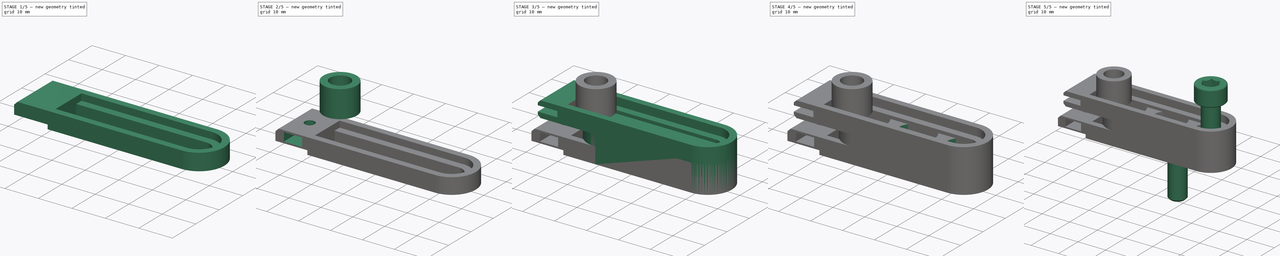
[diagram: build sequence overview — one tinted view per stage of 5, left to right]
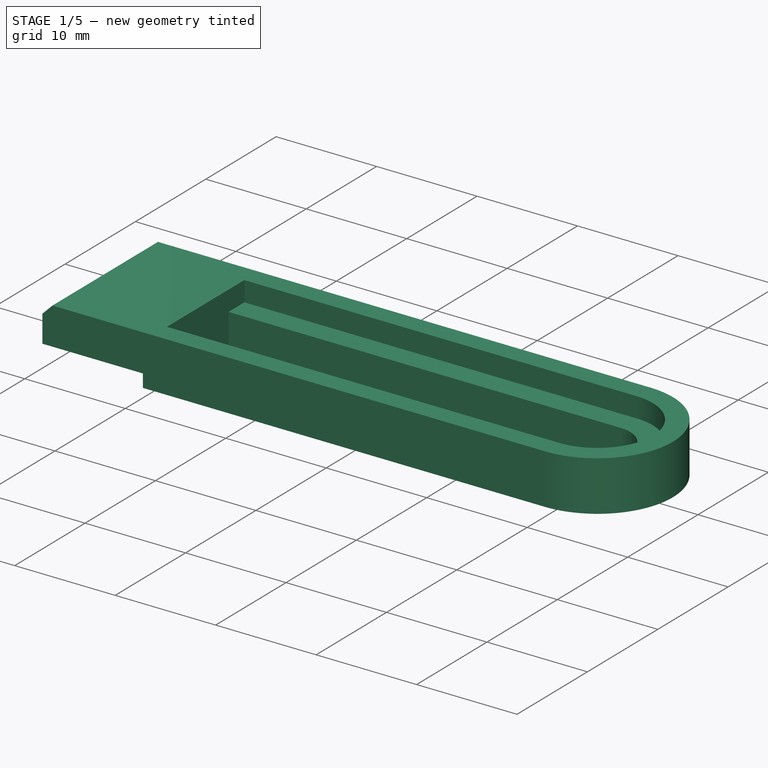
[diagram: stage 1 of 5 — iso view after this stage's code; geometry added in this stage tinted green]
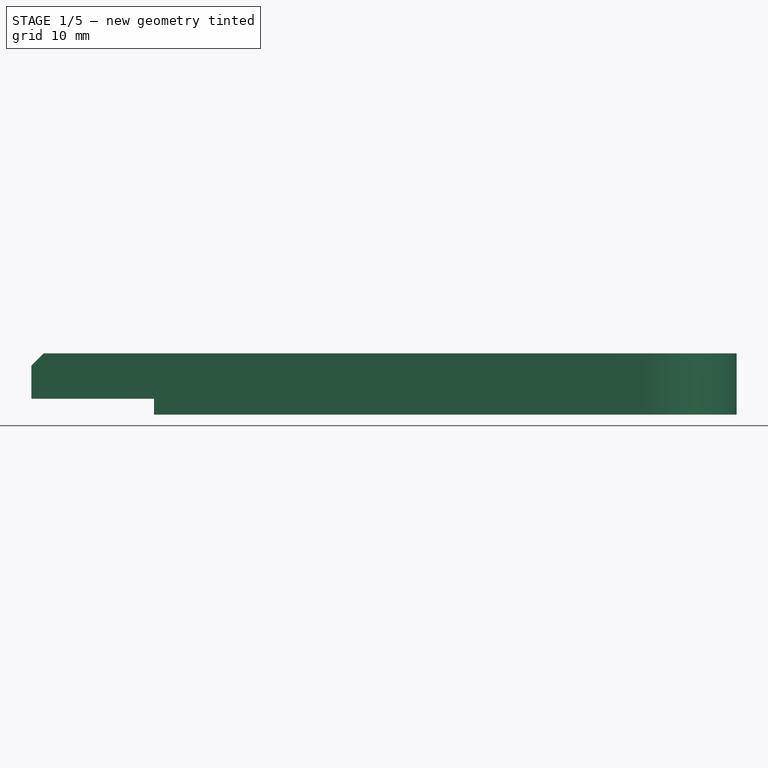
[diagram: stage 1 of 5 — front view after this stage's code; geometry added in this stage tinted green]
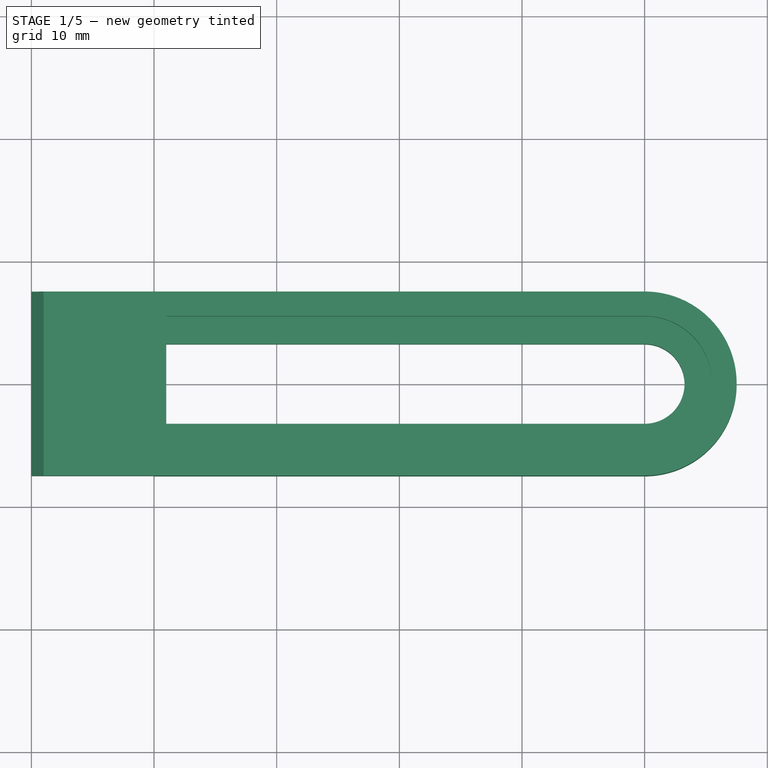
[diagram: stage 1 of 5 — top view after this stage's code; geometry added in this stage tinted green]
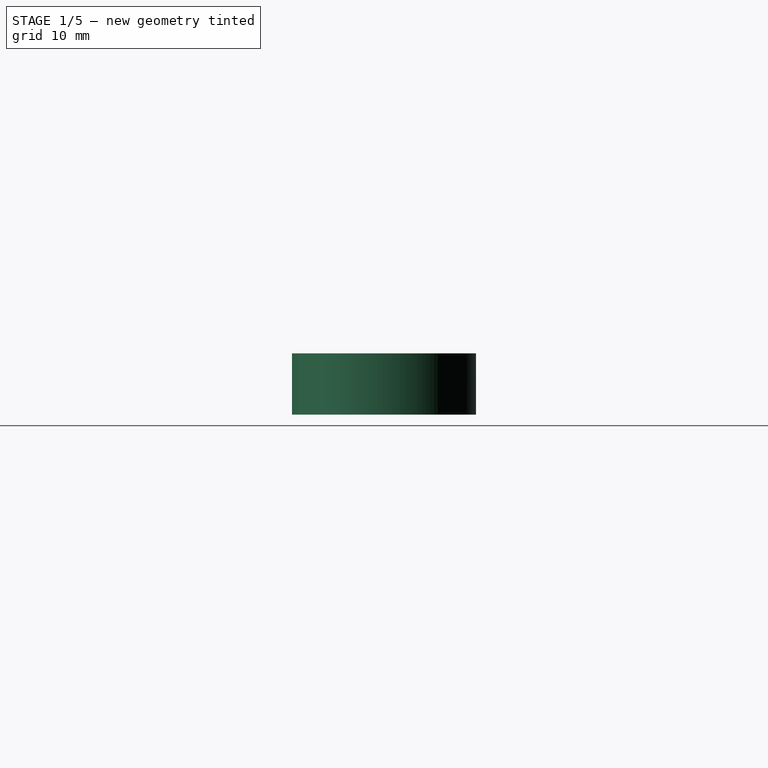
[diagram: stage 1 of 5 — right view after this stage's code; geometry added in this stage tinted green]
FCSTD DOCUMENT  (FreeCAD 0.18R16146 (Git))
Label: holddown-pcb
License: All rights reserved
LicenseURL: http://en.wikipedia.org/wiki/All_rights_reserved
objects: Sketcher::SketchObject×14, PartDesign::Pocket×7, PartDesign::Pad×6, PartDesign::Body×4, Part::FeaturePython×3
note: 47 computed .brp shape members not serialized (recipe doc carries the construction recipe); baked Part::Feature solids carry a one-line shape summary decoded from their .brp

FEATURE [PartDesign::Body] Body002  label="holddown-pcb-spacer"
  Group = -> [Sketch011,Pad003]
  Origin = -> Origin002
  Tip = -> Pad003
FEATURE [Sketcher::SketchObject] Sketch012
  AttachmentOffset = pos=(0,0,3) rot=(0,0,1;0rad)
  MapMode = 5
  Placement = pos=(0,0,3) rot=(0,0,1;0rad)
  Support = -> [XY_Plane003]
  sketch-geometry (4):
    g0: ArcOfCircle CenterX=0 CenterY=0 CenterZ=0 NormalX=0 NormalY=0 NormalZ=1 AngleXU=0 Radius=5.5 StartAngle=4.71239 EndAngle=7.85398
    g1: ArcOfCircle CenterX=-40 CenterY=-4.98e-14 CenterZ=0 NormalX=0 NormalY=0 NormalZ=1 AngleXU=0 Radius=5.5 StartAngle=1.5708 EndAngle=4.71239
    g2: LineSegment StartX=1.727e-13 StartY=5.5 StartZ=0 EndX=-40 EndY=5.5 EndZ=0
    g3: LineSegment StartX=1.846e-13 StartY=-5.5 StartZ=0 EndX=-40 EndY=-5.5 EndZ=0
  constraints (9):
    c: Tangent(g0,g3) = 1.5708
    c: Tangent(g0,g2) = -1.5708
    c: Tangent(g2,g1) = -1.5708
    c: Tangent(g3,g1) = 1.5708
    c: Horizontal(g2)
    c: Equal(g0,g1)
    c: DistanceX(g1,g0) = 40
    c: DistanceY(g1,g1) = 5.5
    c: Coincident(g0,g-1)
FEATURE [Sketcher::SketchObject] Sketch013
  MapMode = 5
  Support = -> [XY_Plane003]
  sketch-geometry (8):
    g0: ArcOfCircle CenterX=0 CenterY=0 CenterZ=0 NormalX=0 NormalY=0 NormalZ=1 AngleXU=0 Radius=7.5 StartAngle=4.71239 EndAngle=7.85398
    g1: LineSegment StartX=2.3e-15 StartY=7.5 StartZ=0 EndX=-40 EndY=7.5 EndZ=0
    g2: LineSegment StartX=-1.4e-15 StartY=-7.5 StartZ=0 EndX=-40 EndY=-7.5 EndZ=0
    g3: ArcOfCircle CenterX=0 CenterY=0 CenterZ=0 NormalX=0 NormalY=0 NormalZ=1 AngleXU=0 Radius=3.25 StartAngle=4.71239 EndAngle=7.85398
    g4: LineSegment StartX=0 StartY=3.25 StartZ=0 EndX=-40 EndY=3.25 EndZ=0
    g5: LineSegment StartX=-6e-16 StartY=-3.25 StartZ=0 EndX=-40 EndY=-3.25 EndZ=0
    g6: LineSegment StartX=-40 StartY=7.5 StartZ=0 EndX=-40 EndY=3.25 EndZ=0
    g7: LineSegment StartX=-40 StartY=-3.25 StartZ=0 EndX=-40 EndY=-7.5 EndZ=0
  constraints (20):
    c: Tangent(g0,g2) = 1.5708
    c: Tangent(g0,g1) = -1.5708
    c: Horizontal(g1)
    c: Coincident(g0,g-1)
    c: DistanceY(g0,g0) = 7.5
    c: Tangent(g3,g5) = 1.5708
    c: Tangent(g3,g4) = -1.5708
    c: Horizontal(g4)
    c: Coincident(g3,g0)
    c: DistanceY(g0,g3) = 3.25
    c: Vertical(g6)
    c: Coincident(g4,g6)
    c: Horizontal(g2)
    c: Coincident(g5,g7)
    c: Coincident(g2,g7)
    c: Vertical(g7)
    c: Coincident(g1,g6)
    c: DistanceX(g5,g4) = 0
    c: DistanceX(g1,g0) = 40
    c: Horizontal(g5)
FEATURE [PartDesign::Pad] Pad004
  Length = 5
  Length2 = 100
  Profile = -> Sketch013
  Type = 0
FEATURE [PartDesign::Pocket] Pocket004
  BaseFeature = -> Pad004
  Length = 5
  Length2 = 100
  Profile = -> Sketch012
  Reversed = true
  Type = 1
FEATURE [Sketcher::SketchObject] Sketch014
  AttachmentOffset = pos=(0,0,7.5) rot=(0,0,1;0rad)
  MapMode = 5
  Placement = pos=(0,-7.5,-1.7e-15) rot=(1,0,0;1.5708rad)
  Support = -> [XZ_Plane003]
  sketch-geometry (8):
    g0: LineSegment StartX=-49 StartY=5 StartZ=0 EndX=-50 EndY=4 EndZ=0
    g1: LineSegment StartX=-50 StartY=4 StartZ=0 EndX=-50 EndY=1.3 EndZ=0
    g2: LineSegment StartX=-50 StartY=1.3 StartZ=0 EndX=-40 EndY=1.3 EndZ=0
    g3: LineSegment StartX=-40 StartY=5 StartZ=0 EndX=-39 EndY=5 EndZ=0
    g4: LineSegment StartX=-39 StartY=5 StartZ=0 EndX=-39 EndY=0 EndZ=0
    g5: LineSegment StartX=-40 StartY=1.3 StartZ=0 EndX=-40 EndY=0 EndZ=0
    g6: LineSegment StartX=-40 StartY=0 StartZ=0 EndX=-39 EndY=0 EndZ=0
    g7: LineSegment StartX=-40 StartY=5 StartZ=0 EndX=-49 EndY=5 EndZ=0
  constraints (24):
    c: Vertical(g1)
    c: Coincident(g2,g1)
    c: Horizontal(g2)
    c: DistanceY(g-1,g2) = 1.3
    c: Coincident(g0,g1)
    c: DistanceX(g0,g0) = 1
    c: DistanceY(g0,g0) = 1
    c: DistanceX(g2,g2) = 10
    c: DistanceX(g2,g-1) = 40
    c: Horizontal(g3)
    c: Coincident(g4,g3)
    c: Vertical(g4)
    c: Coincident(g5,g2)
    c: Vertical(g5)
    c: Coincident(g6,g5)
    c: Coincident(g6,g4)
    c: Horizontal(g6)
    c: PointOnObject(g5,g-1)
    c: DistanceX(g3,g3) = 1
    c: Coincident(g7,g0)
    c: Horizontal(g7)
    c: Coincident(g3,g7)
    c: DistanceY(g4,g4) = 5
    c: DistanceX(g2,g3) = 0
FEATURE [PartDesign::Pad] Pad005
  BaseFeature = -> Pocket004
  Length = 15
  Length2 = 100
  Profile = -> Sketch014
  Reversed = true
  Type = 0
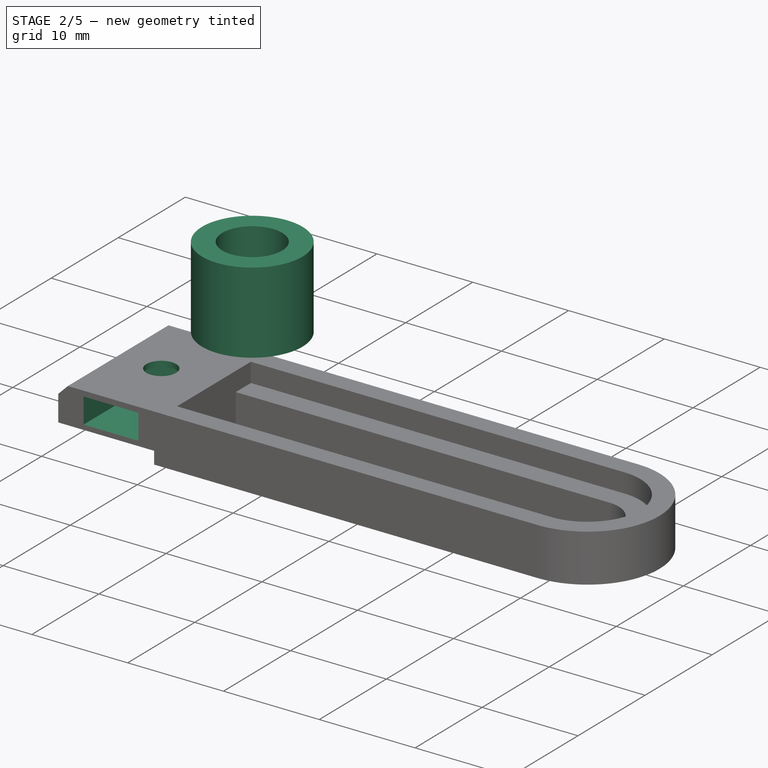
[diagram: stage 2 of 5 — iso view after this stage's code; geometry added in this stage tinted green]
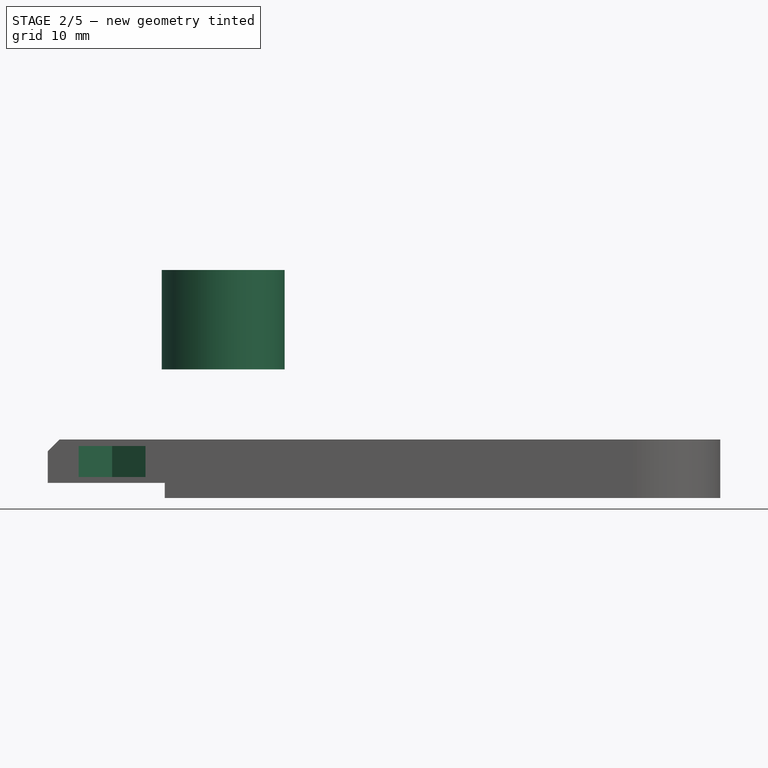
[diagram: stage 2 of 5 — front view after this stage's code; geometry added in this stage tinted green]
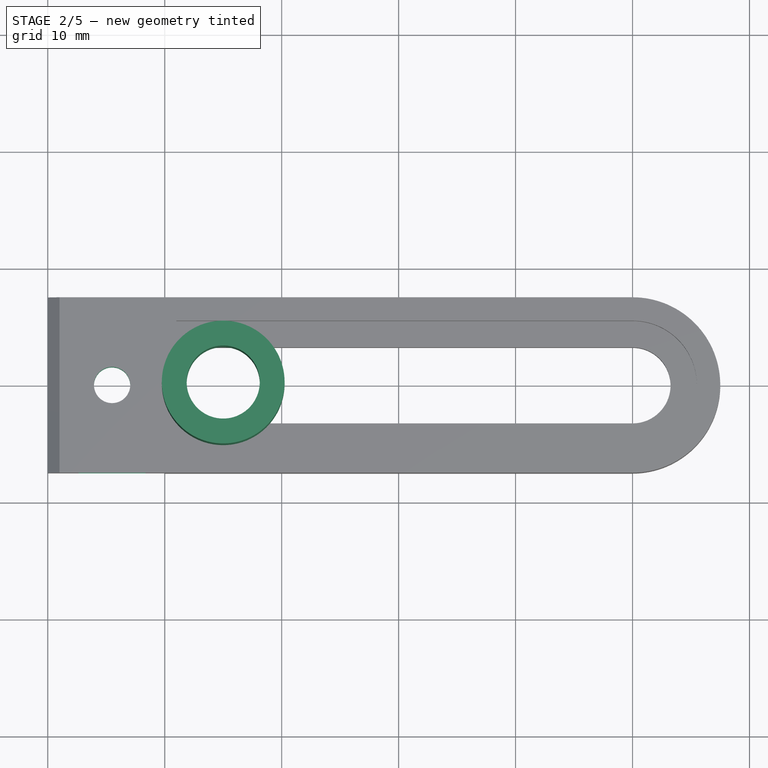
[diagram: stage 2 of 5 — top view after this stage's code; geometry added in this stage tinted green]
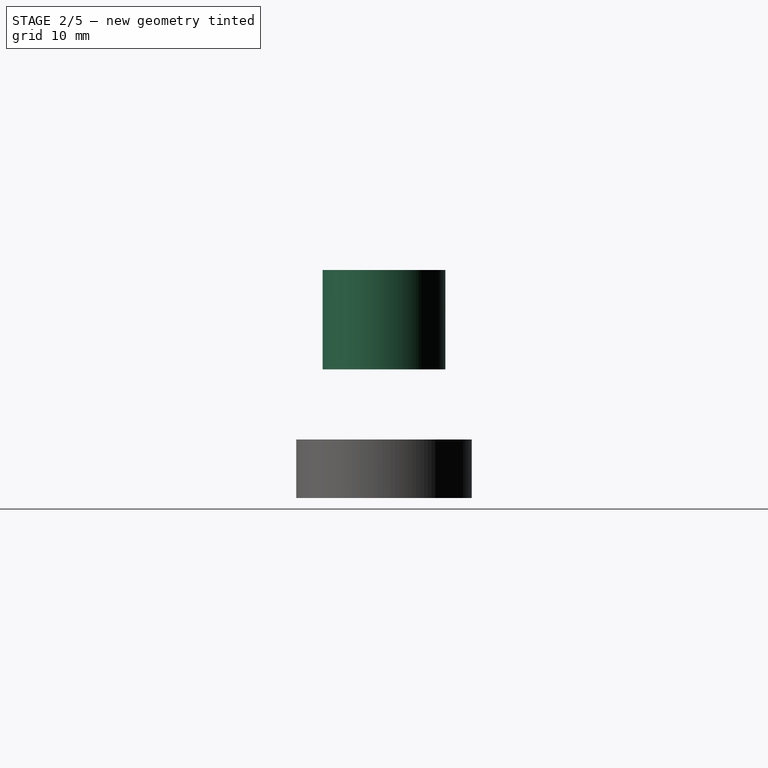
[diagram: stage 2 of 5 — right view after this stage's code; geometry added in this stage tinted green]
FEATURE [PartDesign::Body] Body001  label="holddown-pcb-clip"
  Group = -> [Sketch005,Pad001,Sketch006,Pocket003,Sketch007,Pad002]
  Origin = -> Origin001
  Tip = -> Pad002
FEATURE [Sketcher::SketchObject] Sketch011
  AttachmentOffset = pos=(0,0,11) rot=(0,0,1;0rad)
  MapMode = 5
  Placement = pos=(0,0,11) rot=(0,0,1;0rad)
  Support = -> [XY_Plane002]
  sketch-geometry (2):
    g0: Circle CenterX=-35 CenterY=0 CenterZ=0 NormalX=0 NormalY=0 NormalZ=1 AngleXU=0 Radius=3.125
    g1: Circle CenterX=-35 CenterY=0 CenterZ=0 NormalX=0 NormalY=0 NormalZ=1 AngleXU=0 Radius=5.25
  constraints (5):
    c: PointOnObject(g0,g-1)
    c: Coincident(g1,g0)
    c: Diameter(g0) = 6.25
    c: Diameter(g1) = 10.5
    c: DistanceX(g0,g-1) = 35
FEATURE [PartDesign::Pad] Pad003
  Length = 8.5
  Length2 = 100
  Profile = -> Sketch011
  Type = 0
FEATURE [Sketcher::SketchObject] Sketch015
  MapMode = 5
  Support = -> [XY_Plane003]
  sketch-geometry (1):
    g0: Circle CenterX=-44.5 CenterY=0 CenterZ=0 NormalX=0 NormalY=0 NormalZ=1 AngleXU=0 Radius=1.55
  constraints (3):
    c: Diameter(g0) = 3.1
    c: DistanceX(g0,g-1) = 44.5
    c: PointOnObject(g0,g-1)
FEATURE [PartDesign::Pocket] Pocket005
  BaseFeature = -> Pad005
  Length = 5
  Length2 = 100
  Profile = -> Sketch015
  Reversed = true
  Type = 1
FEATURE [Sketcher::SketchObject] Sketch016
  AttachmentOffset = pos=(0,0,1.8) rot=(0,0,1;0rad)
  MapMode = 5
  Placement = pos=(0,0,1.8) rot=(0,0,1;0rad)
  Support = -> [XY_Plane003]
  sketch-geometry (8):
    g0: LineSegment StartX=-44.5 StartY=3.3 StartZ=0 EndX=-47.3579 EndY=1.65 EndZ=0
    g1: LineSegment StartX=-47.3579 StartY=1.65 StartZ=0 EndX=-47.3579 EndY=-1.65 EndZ=0
    g2: LineSegment StartX=-41.6421 StartY=-1.65 StartZ=0 EndX=-41.6421 EndY=1.65 EndZ=0
    g3: LineSegment StartX=-41.6421 StartY=1.65 StartZ=0 EndX=-44.5 EndY=3.3 EndZ=0
    g4: Circle [constr] CenterX=-44.5 CenterY=0 CenterZ=0 NormalX=0 NormalY=0 NormalZ=1 AngleXU=0 Radius=3.3
    g5: LineSegment StartX=-47.3579 StartY=-1.65 StartZ=0 EndX=-47.3579 EndY=-8.65 EndZ=0
    g6: LineSegment StartX=-41.6421 StartY=-1.65 StartZ=0 EndX=-41.6421 EndY=-8.65 EndZ=0
    g7: LineSegment StartX=-47.3579 StartY=-8.65 StartZ=0 EndX=-41.6421 EndY=-8.65 EndZ=0
  constraints (24):
    c: Coincident(g0,g1)
    c: Coincident(g2,g3)
    c: Coincident(g3,g0)
    c: Equal(g0,g1)
    c: Equal(g0,g2)
    c: Equal(g0,g3)
    c: PointOnObject(g0,g4)
    c: PointOnObject(g1,g4)
    c: PointOnObject(g2,g4)
    c: PointOnObject(g2,g4)
    c: PointOnObject(g3,g4)
    c: PointOnObject(g4,g-1)
    c: DistanceX(g4,g-1) = 44.5
    c: Vertical(g2)
    c: Diameter(g4) = 6.6
    c: Vertical(g5)
    c: Vertical(g6)
    c: Horizontal(g7)
    c: Coincident(g6,g7)
    c: Coincident(g5,g7)
    c: Coincident(g1,g5)
    c: Coincident(g2,g6)
    c: DistanceY(g5,g5) = 7
    c: Vertical(g1)
FEATURE [PartDesign::Pocket] Pocket006
  BaseFeature = -> Pocket005
  Length = 2.65
  Length2 = 100
  Profile = -> Sketch016
  Reversed = true
  Type = 0
FEATURE [PartDesign::Body] Body003  label="holddown-pcb-flush"
  Group = -> [Sketch013,Pad004,Sketch012,Pocket004,Sketch014,Pad005,Sketch015,Pocket005,Sketch016,Pocket006]
  Origin = -> Origin003
  Tip = -> Pocket006
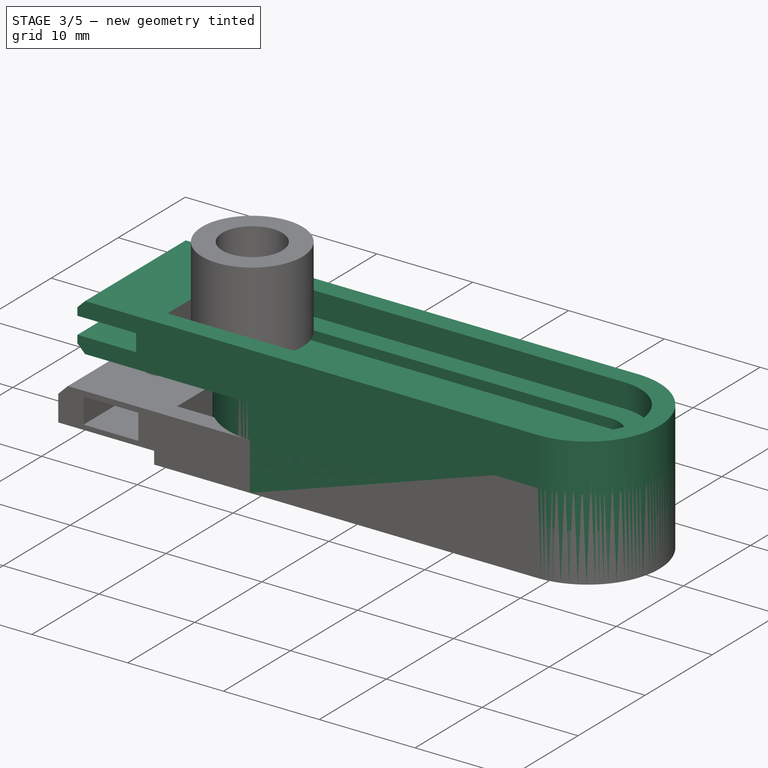
[diagram: stage 3 of 5 — iso view after this stage's code; geometry added in this stage tinted green]
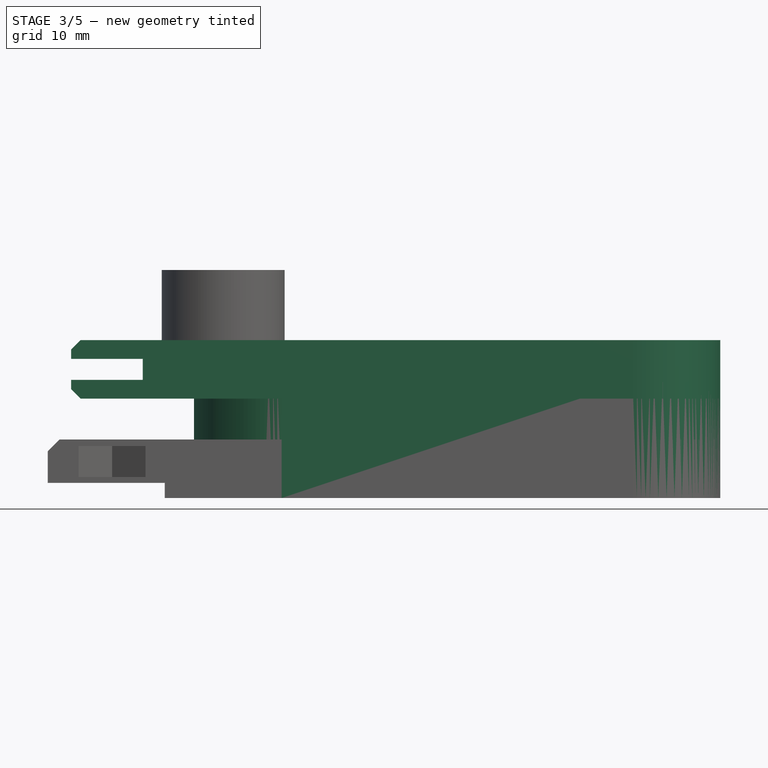
[diagram: stage 3 of 5 — front view after this stage's code; geometry added in this stage tinted green]
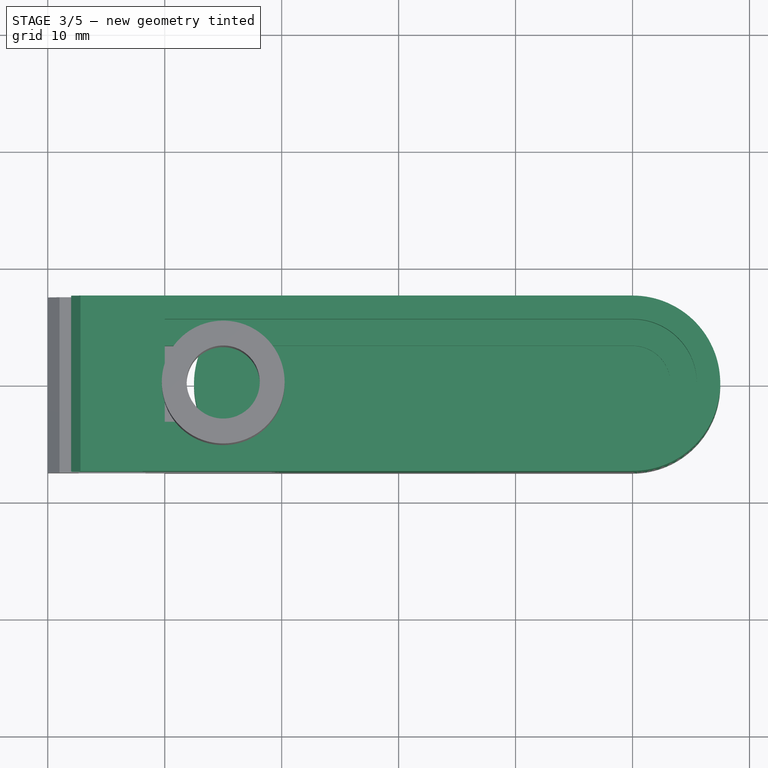
[diagram: stage 3 of 5 — top view after this stage's code; geometry added in this stage tinted green]
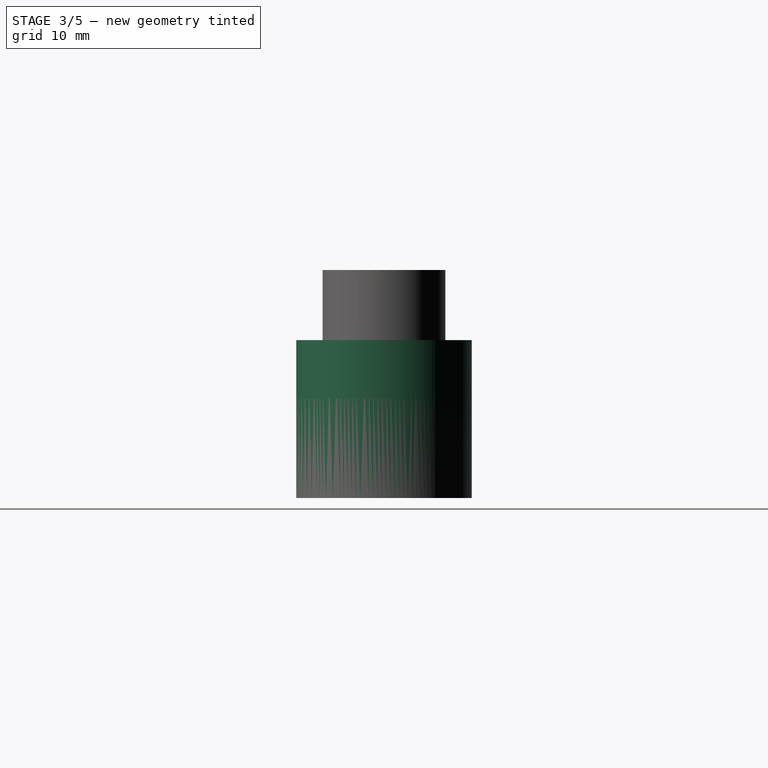
[diagram: stage 3 of 5 — right view after this stage's code; geometry added in this stage tinted green]
FEATURE [Sketcher::SketchObject] Sketch
  MapMode = 5
  Support = -> [XY_Plane]
  sketch-geometry (4):
    g0: ArcOfCircle CenterX=-30 CenterY=2.02e-14 CenterZ=0 NormalX=0 NormalY=0 NormalZ=1 AngleXU=0 Radius=7.5 StartAngle=1.5708 EndAngle=4.71239
    g1: ArcOfCircle CenterX=0 CenterY=0 CenterZ=0 NormalX=0 NormalY=0 NormalZ=1 AngleXU=0 Radius=7.5 StartAngle=4.71239 EndAngle=7.85398
    g2: LineSegment StartX=-30 StartY=-7.5 StartZ=0 EndX=0 EndY=-7.5 EndZ=0
    g3: LineSegment StartX=-30 StartY=7.5 StartZ=0 EndX=-4.97e-14 EndY=7.5 EndZ=0
  constraints (9):
    c: Tangent(g0,g3) = 1.5708
    c: Tangent(g0,g2) = -1.5708
    c: Tangent(g2,g1) = -1.5708
    c: Tangent(g3,g1) = 1.5708
    c: Horizontal(g2)
    c: Equal(g0,g1)
    c: Coincident(g1,g-1)
    c: DistanceX(g0,g1) = 30
    c: DistanceY(g0,g0) = 7.5
FEATURE [PartDesign::Pad] Pad
  Length = 10
  Length2 = 100
  Profile = -> Sketch
  Type = 0
FEATURE [PartDesign::Body] Body  label="holddown-pcb-base"
  Group = -> [Sketch,Pad,Sketch001,Pocket,Sketch002,Sketch003,Pocket001,Sketch004,Pocket002]
  Origin = -> Origin
  Tip = -> Pocket002
FEATURE [Sketcher::SketchObject] Sketch005
  AttachmentOffset = pos=(0,0,8.5) rot=(0,0,1;0rad)
  MapMode = 5
  Placement = pos=(0,0,8.5) rot=(0,0,1;0rad)
  Support = -> [XY_Plane001]
  sketch-geometry (8):
    g0: ArcOfCircle CenterX=0 CenterY=0 CenterZ=0 NormalX=0 NormalY=0 NormalZ=1 AngleXU=0 Radius=7.5 StartAngle=4.71239 EndAngle=7.85398
    g1: LineSegment StartX=2.3e-15 StartY=7.5 StartZ=0 EndX=-40 EndY=7.5 EndZ=0
    g2: LineSegment StartX=9e-16 StartY=-7.5 StartZ=0 EndX=-40 EndY=-7.5 EndZ=0
    g3: ArcOfCircle CenterX=0 CenterY=0 CenterZ=0 NormalX=0 NormalY=0 NormalZ=1 AngleXU=0 Radius=3.25 StartAngle=4.71239 EndAngle=7.85398
    g4: LineSegment StartX=0 StartY=3.25 StartZ=0 EndX=-40 EndY=3.25 EndZ=0
    g5: LineSegment StartX=4e-16 StartY=-3.25 StartZ=0 EndX=-40 EndY=-3.25 EndZ=0
    g6: LineSegment StartX=-40 StartY=7.5 StartZ=0 EndX=-40 EndY=3.25 EndZ=0
    g7: LineSegment StartX=-40 StartY=-3.25 StartZ=0 EndX=-40 EndY=-7.5 EndZ=0
  constraints (20):
    c: Tangent(g0,g2) = 1.5708
    c: Tangent(g0,g1) = -1.5708
    c: Horizontal(g1)
    c: Coincident(g0,g-1)
    c: DistanceY(g0,g0) = 7.5
    c: Tangent(g3,g5) = 1.5708
    c: Tangent(g3,g4) = -1.5708
    c: Horizontal(g4)
    c: Coincident(g3,g0)
    c: DistanceY(g0,g3) = 3.25
    c: Vertical(g6)
    c: Coincident(g4,g6)
    c: Horizontal(g2)
    c: Coincident(g5,g7)
    c: Coincident(g2,g7)
    c: Vertical(g7)
    c: Coincident(g1,g6)
    c: DistanceX(g5,g4) = 0
    c: DistanceX(g1,g0) = 40
    c: Horizontal(g5)
FEATURE [PartDesign::Pad] Pad001
  Length = 5
  Length2 = 100
  Profile = -> Sketch005
  Type = 0
FEATURE [Sketcher::SketchObject] Sketch006
  AttachmentOffset = pos=(0,0,11) rot=(0,0,1;0rad)
  MapMode = 5
  Placement = pos=(0,0,11) rot=(0,0,1;0rad)
  Support = -> [XY_Plane001]
  sketch-geometry (4):
    g0: ArcOfCircle CenterX=0 CenterY=0 CenterZ=0 NormalX=0 NormalY=0 NormalZ=1 AngleXU=0 Radius=5.5 StartAngle=4.71239 EndAngle=7.85398
    g1: ArcOfCircle CenterX=-40 CenterY=-4.98e-14 CenterZ=0 NormalX=0 NormalY=0 NormalZ=1 AngleXU=0 Radius=5.5 StartAngle=1.5708 EndAngle=4.71239
    g2: LineSegment StartX=1.727e-13 StartY=5.5 StartZ=0 EndX=-40 EndY=5.5 EndZ=0
    g3: LineSegment StartX=1.846e-13 StartY=-5.5 StartZ=0 EndX=-40 EndY=-5.5 EndZ=0
  constraints (9):
    c: Tangent(g0,g3) = 1.5708
    c: Tangent(g0,g2) = -1.5708
    c: Tangent(g2,g1) = -1.5708
    c: Tangent(g3,g1) = 1.5708
    c: Horizontal(g2)
    c: Equal(g0,g1)
    c: DistanceX(g1,g0) = 40
    c: DistanceY(g1,g1) = 5.5
    c: Coincident(g0,g-1)
FEATURE [PartDesign::Pocket] Pocket003
  BaseFeature = -> Pad001
  Length = 5
  Length2 = 100
  Profile = -> Sketch006
  Reversed = true
  Type = 1
FEATURE [Sketcher::SketchObject] Sketch007
  AttachmentOffset = pos=(0,0,7.5) rot=(0,0,1;0rad)
  MapMode = 5
  Placement = pos=(0,-7.5,-1.7e-15) rot=(1,0,0;1.5708rad)
  Support = -> [XZ_Plane001]
  sketch-geometry (10):
    g0: LineSegment StartX=-40 StartY=13.5 StartZ=0 EndX=-47.2 EndY=13.5 EndZ=0
    g1: LineSegment StartX=-40 StartY=13.5 StartZ=0 EndX=-40 EndY=8.5 EndZ=0
    g2: LineSegment StartX=-47.2 StartY=8.5 StartZ=0 EndX=-40 EndY=8.5 EndZ=0
    g3: LineSegment StartX=-48 StartY=12.7 StartZ=0 EndX=-48 EndY=11.9 EndZ=0
    g4: LineSegment StartX=-48 StartY=9.3 StartZ=0 EndX=-48 EndY=10.1 EndZ=0
    g5: LineSegment StartX=-48 StartY=11.9 StartZ=0 EndX=-41.875 EndY=11.9 EndZ=0
    g6: LineSegment StartX=-48 StartY=10.1 StartZ=0 EndX=-41.875 EndY=10.1 EndZ=0
    g7: LineSegment StartX=-41.875 StartY=11.9 StartZ=0 EndX=-41.875 EndY=10.1 EndZ=0
    g8: LineSegment StartX=-48 StartY=12.7 StartZ=0 EndX=-47.2 EndY=13.5 EndZ=0
    g9: LineSegment StartX=-48 StartY=9.3 StartZ=0 EndX=-47.2 EndY=8.5 EndZ=0
  constraints (30):
    c: Horizontal(g0)
    c: Coincident(g1,g0)
    c: Horizontal(g2)
    c: Vertical(g1)
    c: Coincident(g1,g2)
    c: DistanceY(g1,g1) = 5
    c: DistanceY(g-1,g1) = 8.5
    c: DistanceX(g1,g-1) = 40
    c: Vertical(g3)
    c: Vertical(g4)
    c: Coincident(g5,g3)
    c: Horizontal(g5)
    c: Coincident(g6,g4)
    c: Horizontal(g6)
    c: DistanceX(g5,g0) = 1.875
    c: Coincident(g7,g5)
    c: Coincident(g7,g6)
    c: Coincident(g0,g8)
    c: Coincident(g3,g8)
    c: DistanceX(g3,g0) = 8
    c: DistanceY(g3,g0) = 1.6
    c: DistanceY(g3,g3) = 0.8
    c: DistanceX(g3,g0) = 0.8
    c: Vertical(g7)
    c: DistanceX(g4,g3) = 0
    c: Coincident(g4,g9)
    c: Coincident(g2,g9)
    c: Equal(g4,g3)
    c: DistanceX(g0,g2) = 0
    c: DistanceY(g2,g4) = 1.6
FEATURE [PartDesign::Pad] Pad002
  BaseFeature = -> Pocket003
  Length = 15
  Length2 = 100
  Profile = -> Sketch007
  Reversed = true
  Type = 0
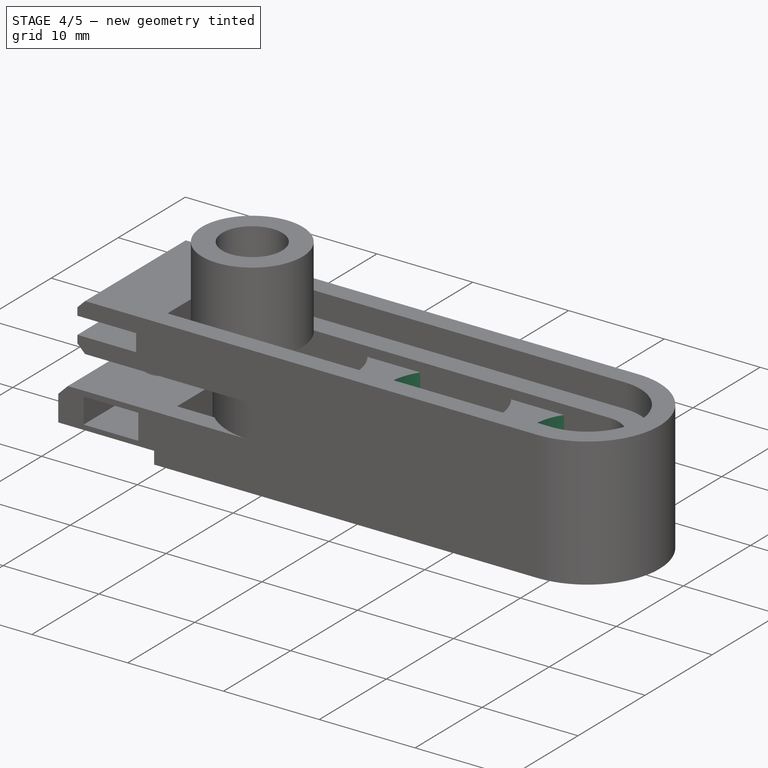
[diagram: stage 4 of 5 — iso view after this stage's code; geometry added in this stage tinted green]
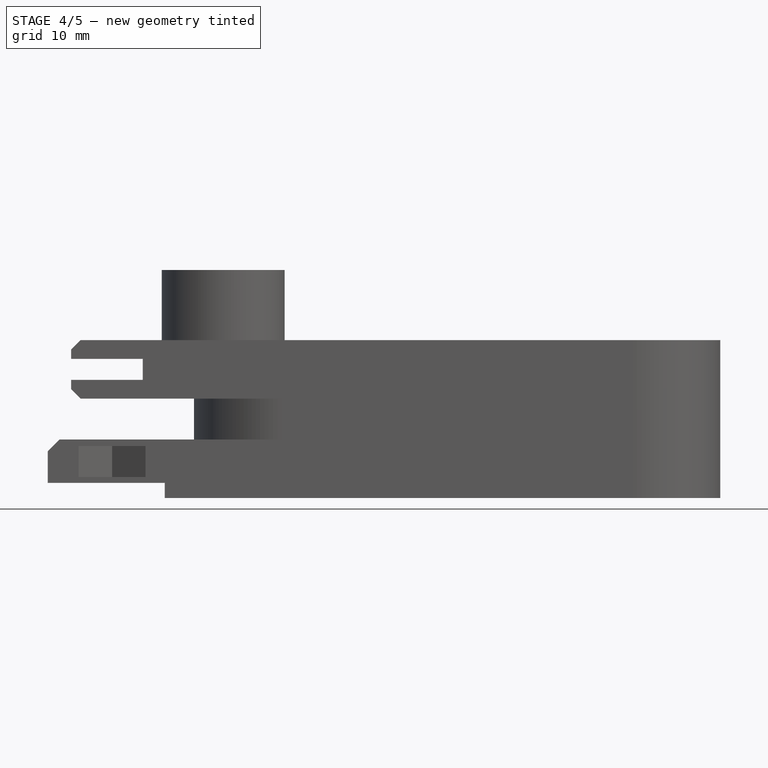
[diagram: stage 4 of 5 — front view after this stage's code; geometry added in this stage tinted green]
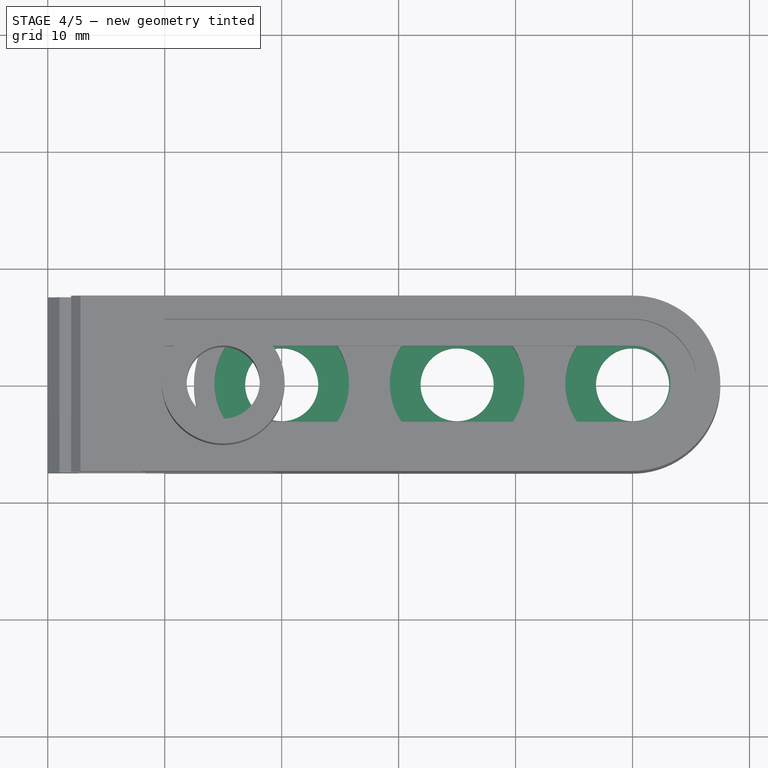
[diagram: stage 4 of 5 — top view after this stage's code; geometry added in this stage tinted green]
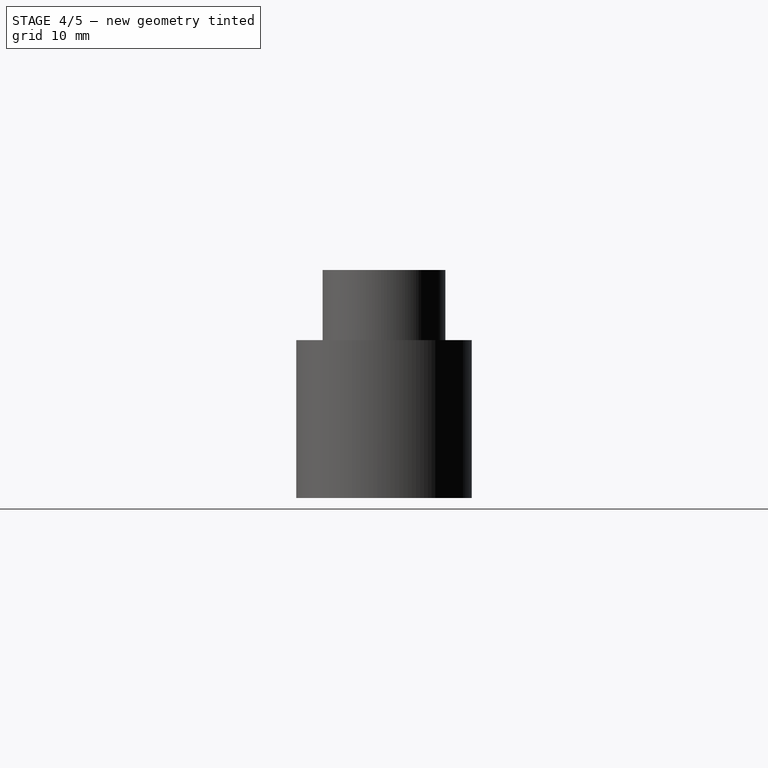
[diagram: stage 4 of 5 — right view after this stage's code; geometry added in this stage tinted green]
FEATURE [Sketcher::SketchObject] Sketch001
  MapMode = 5
  Support = -> [XY_Plane]
  sketch-geometry (3):
    g0: Circle CenterX=-15 CenterY=0 CenterZ=0 NormalX=0 NormalY=0 NormalZ=1 AngleXU=0 Radius=3.125
    g1: Circle CenterX=0 CenterY=0 CenterZ=0 NormalX=0 NormalY=0 NormalZ=1 AngleXU=0 Radius=3.125
    g2: Circle CenterX=-30 CenterY=0 CenterZ=0 NormalX=0 NormalY=0 NormalZ=1 AngleXU=0 Radius=3.125
  constraints (8):
    c: PointOnObject(g0,g-1)
    c: Equal(g0,g1)
    c: Diameter(g1) = 6.25
    c: DistanceX(g0,g-1) = 15
    c: Coincident(g1,g-1)
    c: PointOnObject(g2,g-1)
    c: Equal(g2,g1)
    c: DistanceX(g2,g1) = 30
FEATURE [PartDesign::Pocket] Pocket
  BaseFeature = -> Pad
  Length = 5
  Length2 = 100
  Profile = -> Sketch001
  Reversed = true
  Type = 1
FEATURE [Sketcher::SketchObject] Sketch002
  MapMode = 5
  Support = -> [XY_Plane]
  sketch-geometry (6):
    g0: ArcOfCircle CenterX=0 CenterY=0 CenterZ=0 NormalX=0 NormalY=0 NormalZ=1 AngleXU=0 Radius=7.5 StartAngle=4.71239 EndAngle=7.85398
    g1: LineSegment StartX=-6 StartY=-7.5 StartZ=0 EndX=-1.8e-15 EndY=-7.5 EndZ=0
    g2: LineSegment StartX=-6 StartY=7.5 StartZ=0 EndX=8.9e-15 EndY=7.5 EndZ=0
    g3: GeomPoint X=-6 Y=7.5 Z=0
    g4: GeomPoint X=-6 Y=-7.5 Z=0
    g5: LineSegment StartX=-6 StartY=7.5 StartZ=0 EndX=-6 EndY=-7.5 EndZ=0
  constraints (16):
    c: Horizontal(g1)
    c: Coincident(g0,g-1)
    c: PointOnObject(g3,g2)
    c: PointOnObject(g4,g1)
    c: DistanceX(g3,g0) = 6
    c: Coincident(g5,g3)
    c: Coincident(g5,g4)
    c: Vertical(g5)
    c: PointOnObject(g2,g5)
    c: PointOnObject(g1,g5)
    c: PointOnObject(g0,g-2)
    c: PointOnObject(g0,g-2)
    c: Coincident(g0,g1)
    c: Coincident(g0,g2)
    c: Horizontal(g2)
    c: DistanceY(g0,g0) = 7.5
FEATURE [Sketcher::SketchObject] Sketch003
  AttachmentOffset = pos=(0,0,10) rot=(0,0,1;0rad)
  MapMode = 5
  Placement = pos=(0,0,10) rot=(0,0,1;0rad)
  Support = -> [XY_Plane]
  sketch-geometry (3):
    g0: Circle CenterX=-15 CenterY=0 CenterZ=0 NormalX=0 NormalY=0 NormalZ=1 AngleXU=0 Radius=5.75
    g1: Circle CenterX=-30 CenterY=0 CenterZ=0 NormalX=0 NormalY=0 NormalZ=1 AngleXU=0 Radius=5.75
    g2: Circle CenterX=0 CenterY=0 CenterZ=0 NormalX=0 NormalY=0 NormalZ=1 AngleXU=0 Radius=5.75
  constraints (8):
    c: PointOnObject(g0,g-1)
    c: DistanceX(g0,g-1) = 15
    c: Diameter(g0) = 11.5
    c: PointOnObject(g1,g-1)
    c: Coincident(g2,g-1)
    c: Equal(g1,g0)
    c: Equal(g2,g0)
    c: DistanceX(g1,g0) = 15
FEATURE [PartDesign::Pocket] Pocket001
  BaseFeature = -> Pocket
  Length = 3.5
  Length2 = 100
  Profile = -> Sketch003
  Type = 0
FEATURE [Sketcher::SketchObject] Sketch004
  MapMode = 5
  Support = -> [XY_Plane]
  sketch-geometry (21):
    g0: LineSegment StartX=4.97965 StartY=-2.875 StartZ=0 EndX=4.97965 EndY=2.875 EndZ=0
    g1: LineSegment StartX=4.97965 StartY=2.875 StartZ=0 EndX=1.0809e-12 EndY=5.75 EndZ=0
    g2: LineSegment StartX=1.0808e-12 StartY=5.75 StartZ=0 EndX=-4.97965 EndY=2.875 EndZ=0
    g3: LineSegment StartX=-4.97965 StartY=2.875 StartZ=0 EndX=-4.97965 EndY=-2.875 EndZ=0
    g4: LineSegment StartX=-4.97965 StartY=-2.875 StartZ=0 EndX=1.08e-12 EndY=-5.75 EndZ=0
    g5: LineSegment StartX=1.08e-12 StartY=-5.75 StartZ=0 EndX=4.97965 EndY=-2.875 EndZ=0
    g6: Circle [constr] CenterX=0 CenterY=0 CenterZ=0 NormalX=0 NormalY=0 NormalZ=1 AngleXU=0 Radius=5.75
    g7: LineSegment StartX=-25.0204 StartY=-2.875 StartZ=0 EndX=-25.0204 EndY=2.875 EndZ=0
    g8: LineSegment StartX=-25.0204 StartY=2.875 StartZ=0 EndX=-30 EndY=5.75 EndZ=0
    g9: LineSegment StartX=-30 StartY=5.75 StartZ=0 EndX=-34.9796 EndY=2.875 EndZ=0
    g10: LineSegment StartX=-34.9796 StartY=2.875 StartZ=0 EndX=-34.9796 EndY=-2.875 EndZ=0
    g11: LineSegment StartX=-34.9796 StartY=-2.875 StartZ=0 EndX=-30 EndY=-5.75 EndZ=0
    g12: LineSegment StartX=-30 StartY=-5.75 StartZ=0 EndX=-25.0204 EndY=-2.875 EndZ=0
    g13: Circle [constr] CenterX=-30 CenterY=0 CenterZ=0 NormalX=0 NormalY=0 NormalZ=1 AngleXU=0 Radius=5.75
    g14: LineSegment StartX=-10.0204 StartY=-2.875 StartZ=0 EndX=-10.0204 EndY=2.875 EndZ=0
    g15: LineSegment StartX=-10.0204 StartY=2.875 StartZ=0 EndX=-15 EndY=5.75 EndZ=0
    g16: LineSegment StartX=-15 StartY=5.75 StartZ=0 EndX=-19.9796 EndY=2.875 EndZ=0
    g17: LineSegment StartX=-19.9796 StartY=2.875 StartZ=0 EndX=-19.9796 EndY=-2.875 EndZ=0
    g18: LineSegment StartX=-19.9796 StartY=-2.875 StartZ=0 EndX=-15 EndY=-5.75 EndZ=0
    g19: LineSegment StartX=-15 StartY=-5.75 StartZ=0 EndX=-10.0204 EndY=-2.875 EndZ=0
    g20: Circle [constr] CenterX=-15 CenterY=0 CenterZ=0 NormalX=0 NormalY=0 NormalZ=1 AngleXU=0 Radius=5.75
  constraints (50):
    c: Coincident(g0,g1)
    c: Coincident(g1,g2)
    c: Coincident(g2,g3)
    c: Coincident(g3,g4)
    c: Coincident(g4,g5)
    c: Coincident(g5,g0)
    c: Equal(g0, g1-g5) x5
    c: PointOnObject(g0,g6)
    c: PointOnObject(g1,g6)
    c: PointOnObject(g2,g6)
    c: PointOnObject(g3,g6)
    c: PointOnObject(g4,g6)
    c: PointOnObject(g5,g6)
    c: Coincident(g6,g-1)
    c: Diameter(g6) = 11.5
    c: Vertical(g0)
    c: Coincident(g7,g8)
    c: Coincident(g8,g9)
    c: Coincident(g9,g10)
    c: Coincident(g10,g11)
    c: Coincident(g11,g12)
    c: Coincident(g12,g7)
    c: Equal(g7, g8-g12) x5
    c: PointOnObject(g7,g13)
    c: PointOnObject(g8,g13)
    c: PointOnObject(g9,g13)
    c: PointOnObject(g10,g13)
    c: PointOnObject(g11,g13)
    c: PointOnObject(g12,g13)
    c: PointOnObject(g13,g-1)
    c: Vertical(g10)
    c: DistanceX(g13,g-1) = 30
    c: Equal(g13,g6)
    c: Coincident(g14,g15)
    c: Coincident(g15,g16)
    c: Coincident(g16,g17)
    c: Coincident(g17,g18)
    c: Coincident(g18,g19)
    c: Coincident(g19,g14)
    c: Equal(g14, g15-g19) x5
    c: PointOnObject(g14,g20)
    c: PointOnObject(g15,g20)
    c: PointOnObject(g16,g20)
    c: PointOnObject(g17,g20)
    c: PointOnObject(g18,g20)
    c: PointOnObject(g19,g20)
    c: PointOnObject(g20,g-1)
    c: Vertical(g17)
    c: DistanceX(g20,g-1) = 15
    c: Equal(g20,g6)
FEATURE [PartDesign::Pocket] Pocket002
  BaseFeature = -> Pocket001
  Length = 5
  Length2 = 100
  Profile = -> Sketch004
  Reversed = true
  Type = 0
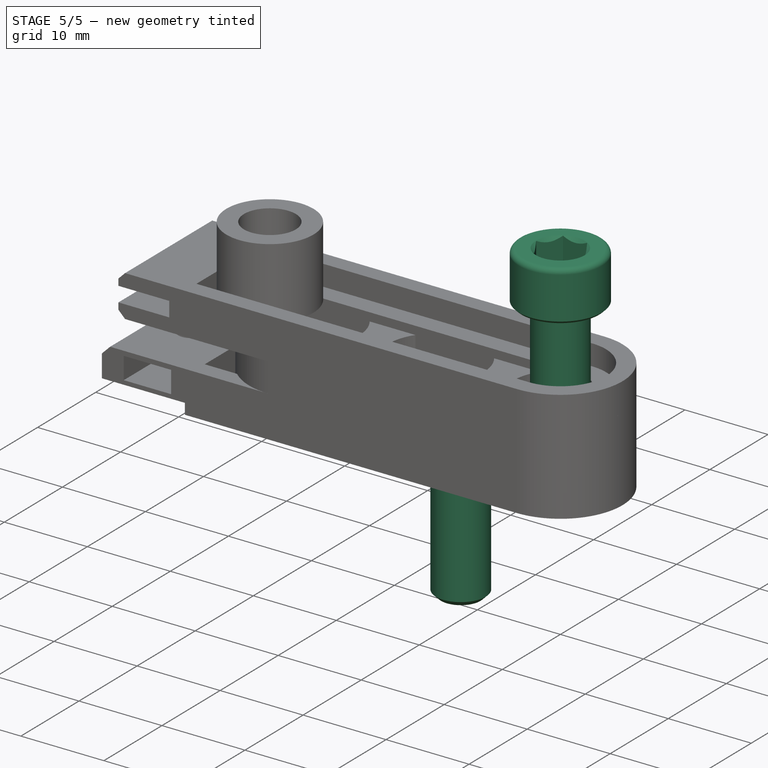
[diagram: stage 5 of 5 — iso view after this stage's code; geometry added in this stage tinted green]
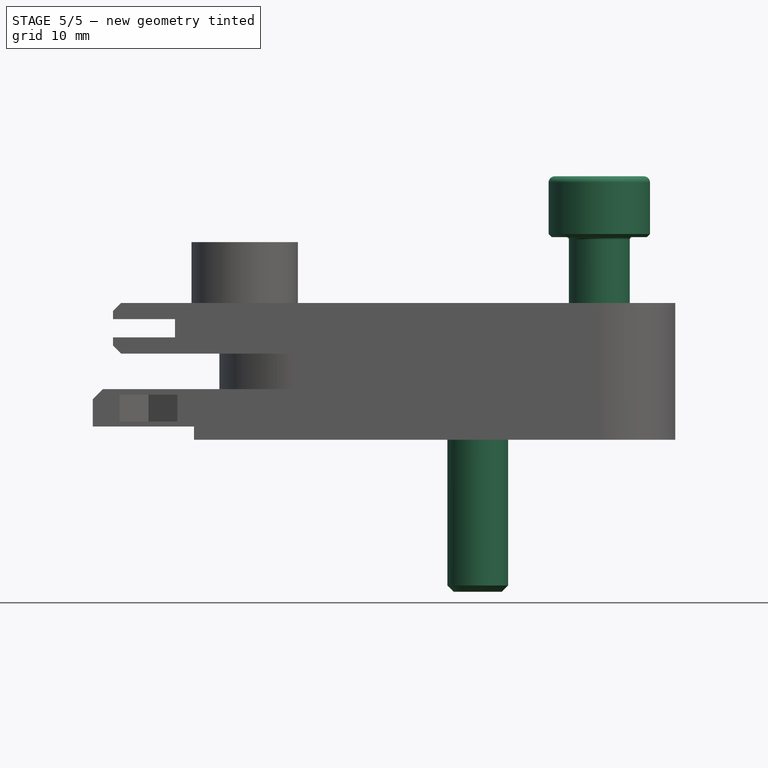
[diagram: stage 5 of 5 — front view after this stage's code; geometry added in this stage tinted green]
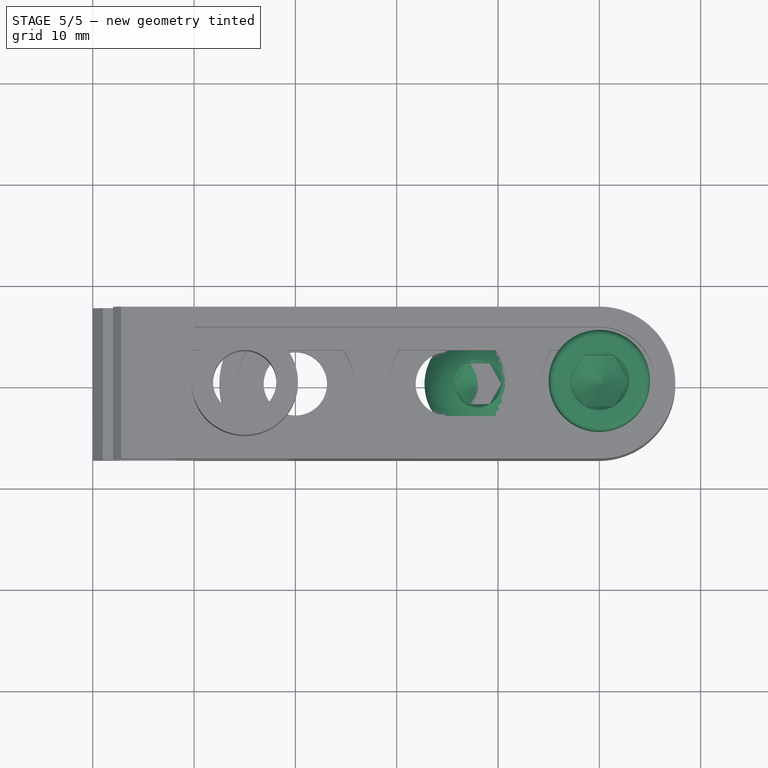
[diagram: stage 5 of 5 — top view after this stage's code; geometry added in this stage tinted green]
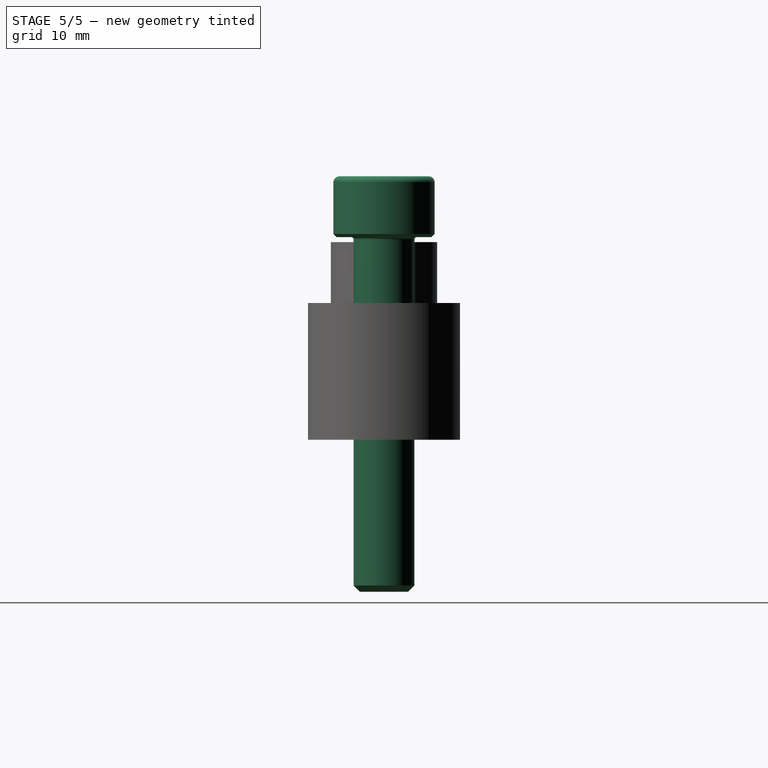
[diagram: stage 5 of 5 — right view after this stage's code; geometry added in this stage tinted green]
FEATURE [Part::FeaturePython] Screw  label="M6x20-Screw"  # Fasteners workbench fastener (typed FeaturePython)
  Placement = pos=(0,0,20) rot=(0,0,1;0rad)
  diameter = 7
  invert = false
  length = 5
  matchOuter = false
  offset = 0
  thread = false
  type = 15
FEATURE [Part::FeaturePython] Nut  label="M6-Nut"  # Fasteners workbench fastener (typed FeaturePython)
  Placement = pos=(0,0,0) rot=(0,0,1;0.523599rad)
  diameter = 8
  invert = false
  matchOuter = false
  offset = 0
  thread = false
  type = 4
FEATURE [Part::FeaturePython] Screw001  label="M6x20-Screw001"  # Fasteners workbench fastener (typed FeaturePython)
  Placement = pos=(-12,0,5) rot=(0,0,1;0rad)
  diameter = 4
  invert = false
  length = 4
  matchOuter = false
  offset = 0
  thread = false
  type = 20
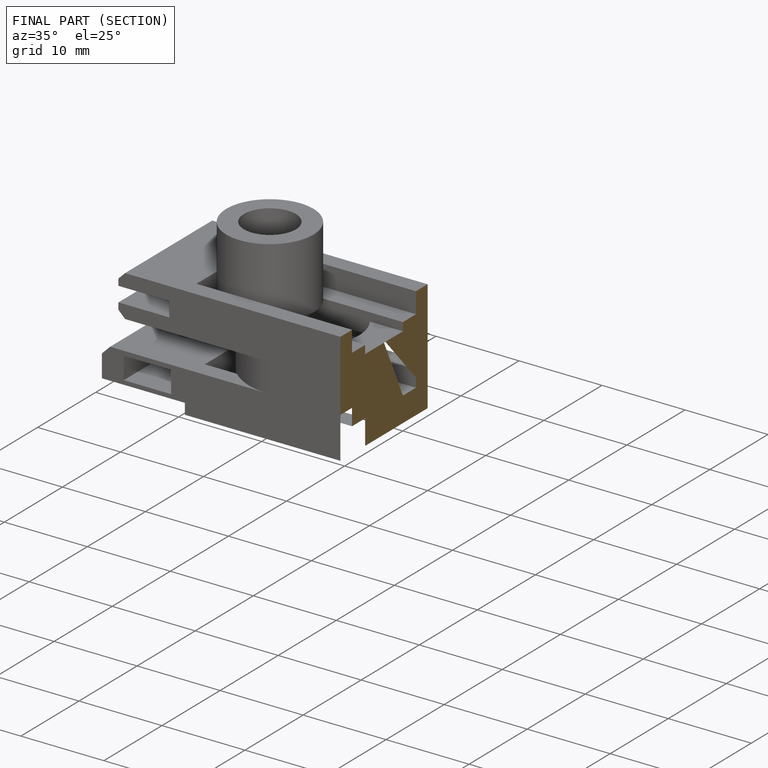
[diagram: finished part — half-section view (interior)]
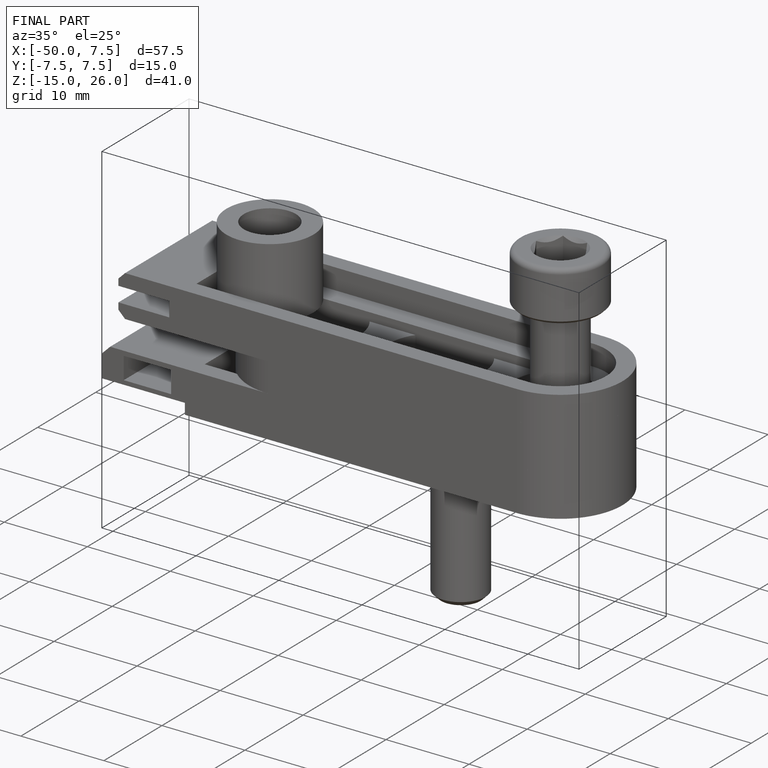
[diagram: finished part — iso view with bounding-box wireframe]
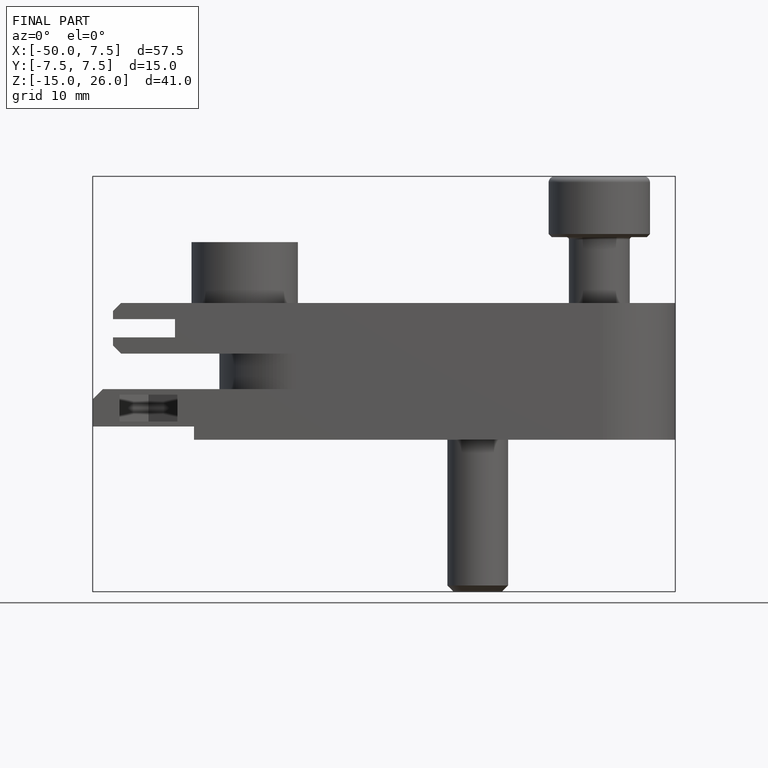
[diagram: finished part — front view with bounding-box wireframe]
